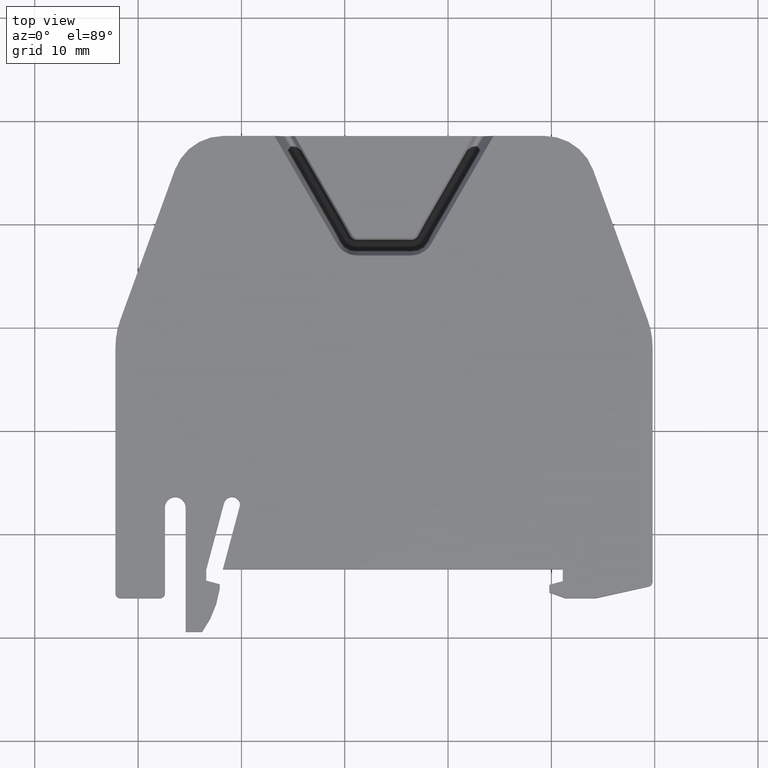
[diagram: clean part render]
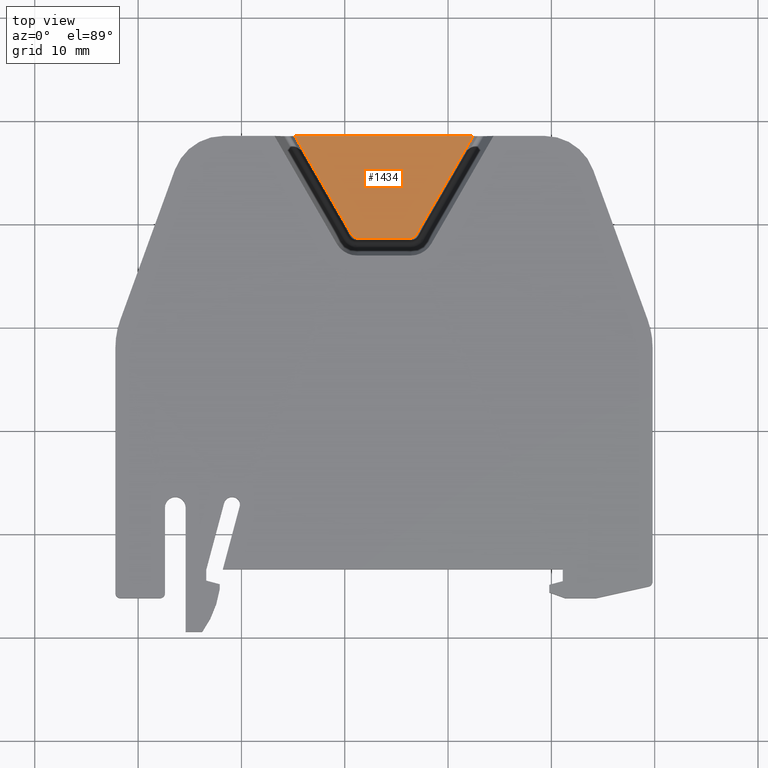
[diagram: same view with one face highlighted and labeled with its STEP entity id]
A machine part, top view. The second image highlights one B-rep face of the part: STEP entity #1434.
In plain terms, the highlighted planar face has unit normal (0, 0, 1).
Its self-contained STEP definition (entity closure, byte-faithful):
#13 = AXIS2_PLACEMENT_3D ( 'NONE', #1006, #984, #972 ) ;
#18 = VECTOR ( 'NONE', #1025, 1000.000000000000000 ) ;
#58 = CIRCLE ( 'NONE', #13, 0.5857864376677124300 ) ;
#65 = VECTOR ( 'NONE', #923, 1000.000000000000000 ) ;
#69 = VECTOR ( 'NONE', #1167, 1000.000000000000100 ) ;
#74 = CIRCLE ( 'NONE', #103, 0.5857864376785926200 ) ;
#100 = VECTOR ( 'NONE', #1077, 1000.000000000000000 ) ;
#103 = AXIS2_PLACEMENT_3D ( 'NONE', #1070, #1055, #1093 ) ;
#233 = AXIS2_PLACEMENT_3D ( 'NONE', #1723, #1709, #1726 ) ;
#283 = EDGE_LOOP ( 'NONE', ( #509, #620, #625, #552, #569, #505 ) ) ;
#309 = VERTEX_POINT ( 'NONE', #817 ) ;
#334 = VERTEX_POINT ( 'NONE', #789 ) ;
#350 = VERTEX_POINT ( 'NONE', #760 ) ;
#354 = VERTEX_POINT ( 'NONE', #790 ) ;
#360 = VERTEX_POINT ( 'NONE', #811 ) ;
#363 = VERTEX_POINT ( 'NONE', #814 ) ;
#505 = ORIENTED_EDGE ( 'NONE', *, *, #1278, .T. ) ;
#509 = ORIENTED_EDGE ( 'NONE', *, *, #1297, .T. ) ;
#552 = ORIENTED_EDGE ( 'NONE', *, *, #1258, .T. ) ;
#569 = ORIENTED_EDGE ( 'NONE', *, *, #1334, .T. ) ;
#620 = ORIENTED_EDGE ( 'NONE', *, *, #1309, .T. ) ;
#625 = ORIENTED_EDGE ( 'NONE', *, *, #1293, .T. ) ;
#760 = CARTESIAN_POINT ( 'NONE',  ( 1782.434696606089800, 738.5609287200069300, 1.499999999999959100 ) ) ;
#789 = CARTESIAN_POINT ( 'NONE',  ( 1771.205443564265100, 728.6872075022556600, 1.499999999981602100 ) ) ;
#790 = CARTESIAN_POINT ( 'NONE',  ( 1765.166435380185000, 738.5609287200069300, 1.499999999999967400 ) ) ;
#811 = CARTESIAN_POINT ( 'NONE',  ( 1776.395688422009700, 728.6872075022312200, 1.500000000001819000 ) ) ;
#814 = CARTESIAN_POINT ( 'NONE',  ( 1776.902989574870600, 728.9800924361948100, 1.499999999987608100 ) ) ;
#817 = CARTESIAN_POINT ( 'NONE',  ( 1770.698142411420300, 728.9800924362097000, 1.500000000016029800 ) ) ;
#923 = DIRECTION ( 'NONE',  ( -1.000000000000000000, -0.0000000000000000000, -0.0000000000000000000 ) ) ;
#947 = CARTESIAN_POINT ( 'NONE',  ( 1789.343152928030100, 738.5609287200070400, 1.499999999999932100 ) ) ;
#956 = LINE ( 'NONE', #947, #65 ) ;
#972 = DIRECTION ( 'NONE',  ( -1.000000000000000000, -1.895269253835014500E-013, 0.0000000000000000000 ) ) ;
#984 = DIRECTION ( 'NONE',  ( -0.0000000000000000000, -0.0000000000000000000, 1.000000000000000000 ) ) ;
#1006 = CARTESIAN_POINT ( 'NONE',  ( 1771.205443564265100, 729.2729939398921000, 1.499999999964529700 ) ) ;
#1021 = CARTESIAN_POINT ( 'NONE',  ( 1776.902989574835600, 728.9800924362110700, 1.500000000000000000 ) ) ;
#1025 = DIRECTION ( 'NONE',  ( 0.5000141431473620300, 0.8660172380805184500, 0.0000000000000000000 ) ) ;
#1033 = LINE ( 'NONE', #1021, #18 ) ;
#1034 = CARTESIAN_POINT ( 'NONE',  ( 1799.300570147185500, 728.6872075022577100, 1.500000000000000000 ) ) ;
#1036 = LINE ( 'NONE', #1034, #100 ) ;
#1055 = DIRECTION ( 'NONE',  ( -0.0000000000000000000, -0.0000000000000000000, 1.000000000000000000 ) ) ;
#1070 = CARTESIAN_POINT ( 'NONE',  ( 1776.395688422009900, 729.2729939398921000, 1.499999999964529700 ) ) ;
#1077 = DIRECTION ( 'NONE',  ( 1.000000000000000000, 0.0000000000000000000, -0.0000000000000000000 ) ) ;
#1093 = DIRECTION ( 'NONE',  ( -1.000000000000000000, 0.0000000000000000000, 0.0000000000000000000 ) ) ;
#1167 = DIRECTION ( 'NONE',  ( 0.5000141431473164000, -0.8660172380805447600, 0.0000000000000000000 ) ) ;
#1180 = CARTESIAN_POINT ( 'NONE',  ( 1765.166435380185000, 738.5609287200069300, 1.500000000000000000 ) ) ;
#1181 = LINE ( 'NONE', #1180, #69 ) ;
#1258 = EDGE_CURVE ( 'NONE', #350, #354, #956, .T. ) ;
#1278 = EDGE_CURVE ( 'NONE', #309, #334, #58, .T. ) ;
#1293 = EDGE_CURVE ( 'NONE', #363, #350, #1033, .T. ) ;
#1297 = EDGE_CURVE ( 'NONE', #334, #360, #1036, .T. ) ;
#1309 = EDGE_CURVE ( 'NONE', #360, #363, #74, .T. ) ;
#1334 = EDGE_CURVE ( 'NONE', #354, #309, #1181, .T. ) ;
#1434 = ADVANCED_FACE ( 'NONE', ( #1735 ), #1725, .T. ) ;
#1709 = DIRECTION ( 'NONE',  ( 0.0000000000000000000, 0.0000000000000000000, 1.000000000000000000 ) ) ;
#1723 = CARTESIAN_POINT ( 'NONE',  ( 1799.300570147185500, 695.4315348762220300, 1.500000000000000000 ) ) ;
#1725 = PLANE ( 'NONE',  #233 ) ;
#1726 = DIRECTION ( 'NONE',  ( 1.000000000000000000, 0.0000000000000000000, -0.0000000000000000000 ) ) ;
#1735 = FACE_OUTER_BOUND ( 'NONE', #283, .T. ) ;